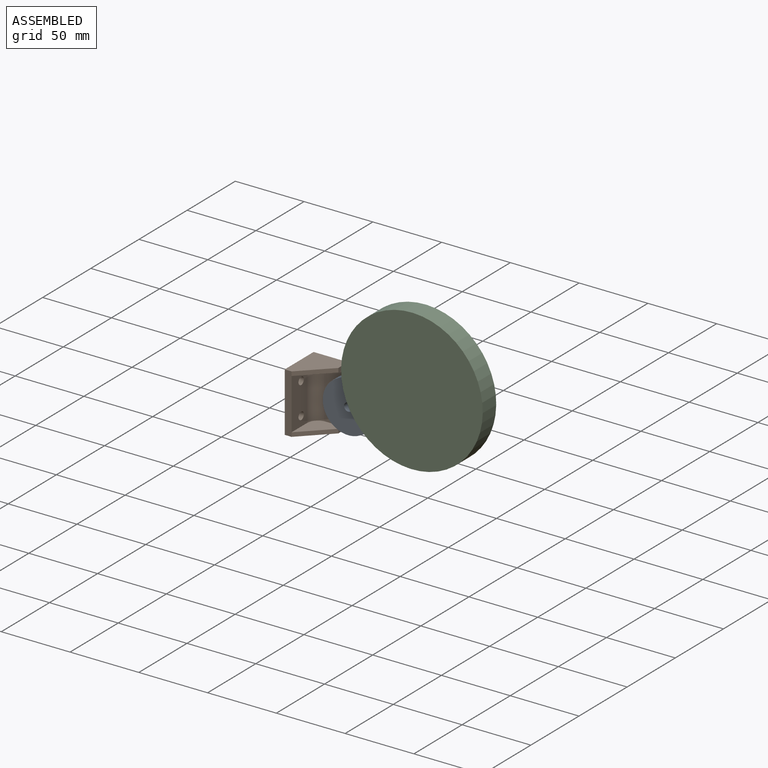
[diagram: assembled view]
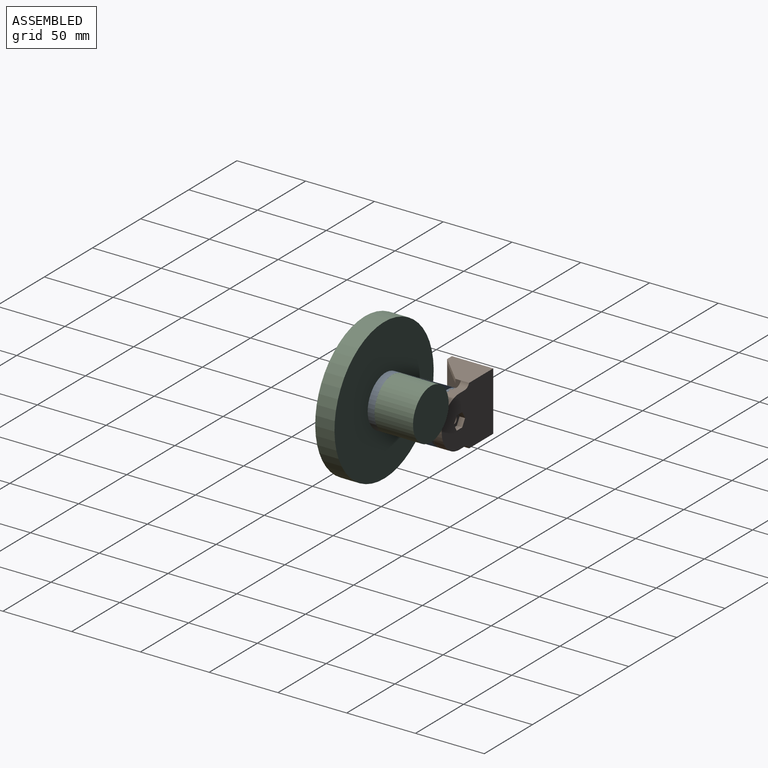
[diagram: assembled view, second angle]
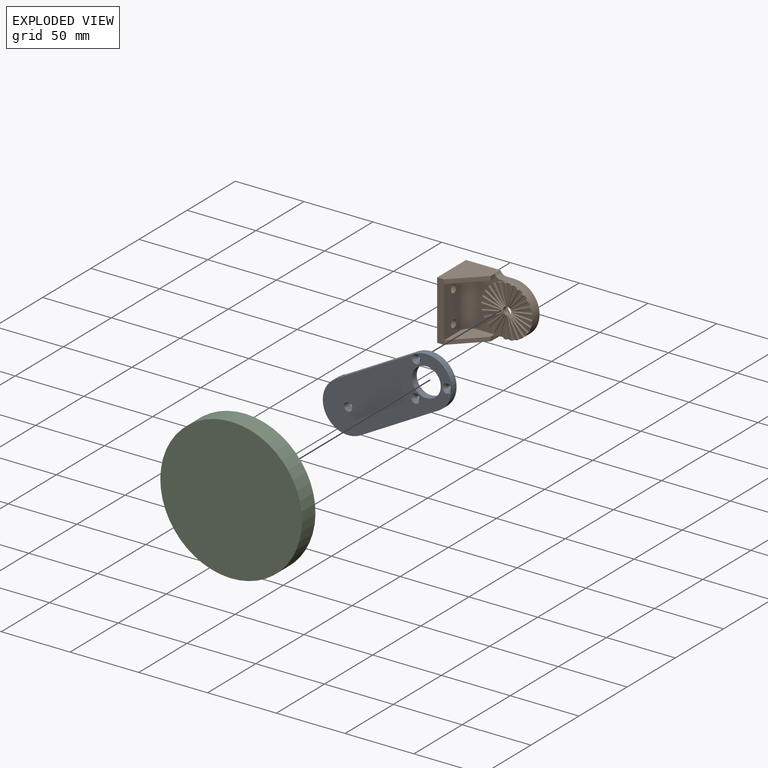
[diagram: exploded view]
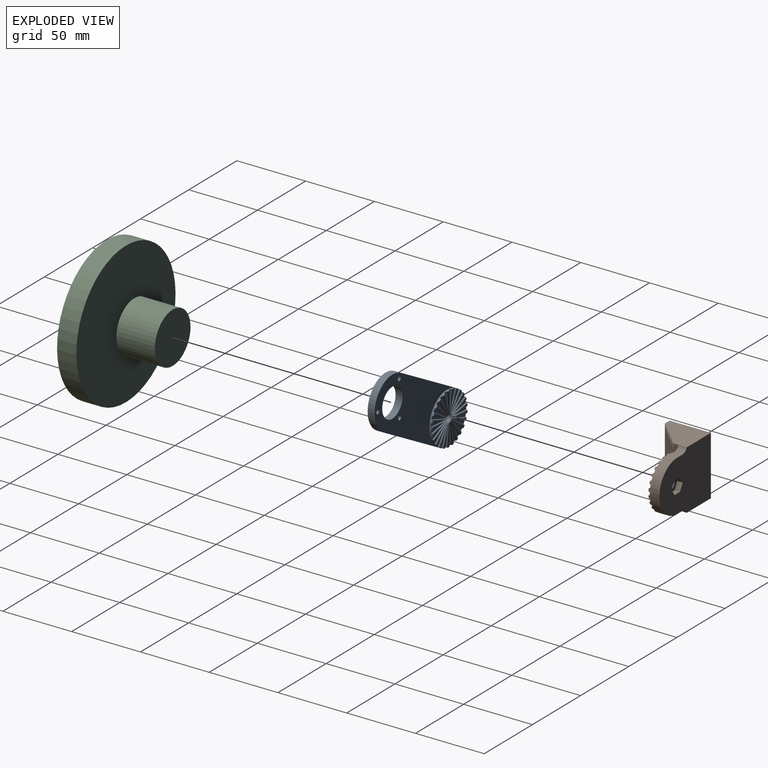
[diagram: exploded view, second angle]
ASSEMBLY  parts=3 mates=2
PART A: 164 faces, bbox 102x7x37 mm
  f0: cylinder r=3mm len=6.89mm, axis (0,1,0), area 120.4mm2, adj f35,f36,f37,f38,f39,f40,f41,f42
  f1: plane 10.21x3.88mm, normal (0,-1,0), area 7mm2, adj f32,f133,f134
  f2: plane 10.55x1.32mm, normal (0,-1,0), area 7mm2, adj f32,f135,f136
  f3: plane 8.13x7.69mm, normal (0,-1,0), area 7mm2, adj f32,f129,f130
  f4: plane 9.24x6.2mm, normal (0,-1,0), area 7mm2, adj f32,f131,f132
  f5: plane 8.53x7.22mm, normal (0,-1,0), area 7mm2, adj f32,f141,f142
  f6: plane 8.9x6.72mm, normal (0,-1,0), area 7mm2, adj f32,f143,f144
  f7: plane 10.46x2.62mm, normal (0,-1,0), area 7mm2, adj f32,f137,f138
  f8: plane 9.81x5.08mm, normal (0,-1,0), area 7mm2, adj f32,f139,f140
  f9: plane 8.53x7.22mm, normal (0,-1,0), area 7mm2, adj f32,f155,f156
  f10: plane 8.9x6.72mm, normal (0,-1,0), area 7mm2, adj f32,f153,f154
  f11: plane 10.46x2.62mm, normal (0,-1,0), area 7mm2, adj f32,f159,f160
  f12: plane 9.81x5.08mm, normal (0,-1,0), area 7mm2, adj f32,f157,f158
  f13: plane 10.53x1.98mm, normal (0,-1,0), area 7mm2, adj f32,f147,f148
  f14: plane 10.03x4.49mm, normal (0,-1,0), area 7mm2, adj f32,f145,f146
  f15: plane 10.03x4.49mm, normal (0,-1,0), area 7mm2, adj f32,f151,f152
  f16: plane 10.53x1.98mm, normal (0,-1,0), area 7mm2, adj f32,f149,f150
  f17: plane 8.13x7.69mm, normal (0,-1,0), area 7mm2, adj f32,f117,f118
  f18: plane 9.54x5.65mm, normal (0,-1,0), area 7mm2, adj f32,f119,f120
  f19: plane 10.21x3.88mm, normal (0,-1,0), area 7mm2, adj f32,f113,f114
  f20: plane 9.24x6.2mm, normal (0,-1,0), area 7mm2, adj f32,f115,f116
  f21: plane 10.54x1.32mm, normal (0,-1,0), area 7mm2, adj f32,f123,f124
  f22: plane 10.36x3.26mm, normal (0,-1,0), area 7mm2, adj f32,f121,f122
  f23: plane 9.54x5.65mm, normal (0,-1,0), area 7mm2, adj f32,f127,f128
  f24: plane 10.36x3.26mm, normal (0,-1,0), area 7mm2, adj f32,f125,f126
  f25: plane 10.55x1.32mm, normal (0,-1,0), area 7mm2, adj f32,f111,f112
  f26: plane 65x5mm, normal (0,0,1), area 325mm2, adj f27,f32,f34,f35
  f27: cylinder r=18.5mm len=37mm, axis (0,1,0), area 290.6mm2, adj f26,f28,f34,f35
  f28: plane 65x5mm, normal (0,0,-1), area 325mm2, adj f27,f32,f34,f35
  f29: cylinder r=1.55mm len=3.2mm, axis (0,1,0), area 31.2mm2, adj f34,f162
  f30: cylinder r=10.5mm len=21mm, axis (0,1,0), area 329.9mm2, adj f34,f35
  f31: cylinder r=1.55mm len=3.2mm, axis (0,1,0), area 31.2mm2, adj f34,f161
  f32: cylinder r=18.5mm len=37mm, axis (0,1,0), area 462.3mm2, adj f1,f2,f3,f4,f5,f6,f7,f8
  f33: cylinder r=1.55mm len=3.2mm, axis (0,1,0), area 31.2mm2, adj f34,f163
  f34: plane 83.5x37mm, normal (0,-1,0), area 2036mm2, adj f26,f27,f28,f29,f30,f31,f32,f33
  f35: plane 102x37mm, normal (0,1,0), area 2999.8mm2, adj f0,f26,f27,f28,f30,f32,f161,f162
  f36: plane 15.5x0.5mm, normal (1,0,0), area 7.7mm2, adj f0,f32,f38,f111
  f37: plane 15.38x1.94mm, normal (-0.99,0,0.13), area 7.8mm2, adj f0,f32,f38,f159
  f38: plane 15.52x2.32mm, normal (0,-1,0), area 20.9mm2, adj f0,f32,f36,f37
  f39: plane 15.47x0.97mm, normal (0.06,0,-1), area 7.7mm2, adj f0,f32,f41,f123
  f40: plane 15.23x2.9mm, normal (-0.19,0,0.98), area 7.7mm2, adj f0,f32,f41,f126
  f41: plane 15.52x3.28mm, normal (0,-1,0), area 20.9mm2, adj f0,f32,f39,f40
  f42: plane 14.74x4.79mm, normal (0.31,0,-0.95), area 7.7mm2, adj f0,f32,f44,f125
  f43: plane 14.03x6.6mm, normal (-0.43,0,0.9), area 7.7mm2, adj f0,f32,f44,f128
  f44: plane 14.88x6.95mm, normal (0,-1,0), area 20.9mm2, adj f0,f32,f42,f43
  f45: plane 14.03x6.6mm, normal (-0.43,0,-0.9), area 7.7mm2, adj f0,f32,f47,f119
  f46: plane 14.74x4.79mm, normal (0.31,0,0.95), area 7.7mm2, adj f0,f32,f47,f122
  f47: plane 14.88x6.95mm, normal (0,-1,0), area 20.9mm2, adj f0,f32,f45,f46
  f48: plane 15.23x2.9mm, normal (-0.19,0,-0.98), area 7.7mm2, adj f0,f32,f50,f121
  f49: plane 15.47x0.97mm, normal (0.06,0,1), area 7.7mm2, adj f0,f32,f50,f124
  f50: plane 15.52x3.28mm, normal (0,-1,0), area 20.9mm2, adj f0,f32,f48,f49
  f51: plane 14.41x5.71mm, normal (-0.93,0,-0.37), area 7.8mm2, adj f0,f32,f53,f113
  f52: plane 13.58x7.47mm, normal (0.88,0,0.48), area 7.8mm2, adj f0,f32,f53,f116
  f53: plane 14.57x7.81mm, normal (0,-1,0), area 20.9mm2, adj f0,f32,f51,f52
  f54: plane 15.38x1.94mm, normal (-0.99,0,-0.13), area 7.8mm2, adj f0,f32,f56,f112
  f55: plane 15.01x3.85mm, normal (0.97,0,0.25), area 7.7mm2, adj f0,f32,f56,f114
  f56: plane 15.45x4.22mm, normal (0,-1,0), area 20.9mm2, adj f0,f32,f54,f55
  f57: plane 11.94x9.88mm, normal (-0.64,0,-0.77), area 7.7mm2, adj f0,f32,f59,f117
  f58: plane 13.09x8.31mm, normal (0.54,0,0.84), area 7.8mm2, adj f0,f32,f59,f120
  f59: plane 13.31x10.19mm, normal (0,-1,0), area 20.9mm2, adj f0,f32,f57,f58
  f60: plane 12.54x9.11mm, normal (-0.81,0,-0.59), area 7.7mm2, adj f0,f32,f62,f115
  f61: plane 11.3x10.61mm, normal (0.73,0,0.68), area 7.8mm2, adj f0,f32,f62,f118
  f62: plane 12.78x10.9mm, normal (0,-1,0), area 20.9mm2, adj f0,f32,f60,f61
  f63: plane 15.47x0.97mm, normal (0.06,0,1), area 7.7mm2, adj f0,f32,f65,f147
  f64: plane 15.47x0.97mm, normal (0.06,0,-1), area 7.7mm2, adj f0,f32,f65,f150
  f65: plane 15.51x2.32mm, normal (0,-1,0), area 20.9mm2, adj f0,f32,f63,f64
  f66: plane 15.23x2.9mm, normal (-0.19,0,0.98), area 7.7mm2, adj f0,f32,f68,f149
  f67: plane 14.74x4.79mm, normal (0.31,0,-0.95), area 7.7mm2, adj f0,f32,f68,f152
  f68: plane 15.32x5.15mm, normal (0,-1,0), area 20.9mm2, adj f0,f32,f66,f67
  f69: plane 13.09x8.31mm, normal (0.54,0,0.84), area 7.8mm2, adj f0,f32,f71,f143
  f70: plane 14.03x6.6mm, normal (-0.43,0,-0.9), area 7.7mm2, adj f0,f32,f71,f146
  f71: plane 14.21x8.64mm, normal (0,-1,0), area 20.9mm2, adj f0,f32,f69,f70
  f72: plane 14.74x4.79mm, normal (0.31,0,0.95), area 7.7mm2, adj f0,f32,f74,f145
  f73: plane 15.23x2.9mm, normal (-0.19,0,-0.98), area 7.7mm2, adj f0,f32,f74,f148
  f74: plane 15.32x5.15mm, normal (0,-1,0), area 20.9mm2, adj f0,f32,f72,f73
  f75: plane 12.54x9.11mm, normal (-0.81,0,0.59), area 7.7mm2, adj f0,f32,f77,f155
  f76: plane 13.58x7.47mm, normal (0.88,0,-0.48), area 7.8mm2, adj f0,f32,f77,f158
  f77: plane 13.78x9.43mm, normal (0,-1,0), area 20.9mm2, adj f0,f32,f75,f76
  f78: plane 14.41x5.71mm, normal (-0.93,0,0.37), area 7.8mm2, adj f0,f32,f80,f157
  f79: plane 15.01x3.85mm, normal (0.97,0,-0.25), area 7.7mm2, adj f0,f32,f80,f160
  f80: plane 15.13x6.06mm, normal (0,-1,0), area 20.9mm2, adj f0,f32,f78,f79
  f81: plane 14.03x6.6mm, normal (-0.43,0,0.9), area 7.7mm2, adj f0,f32,f83,f151
  f82: plane 13.09x8.31mm, normal (0.54,0,-0.84), area 7.8mm2, adj f0,f32,f83,f154
  f83: plane 14.21x8.64mm, normal (0,-1,0), area 20.9mm2, adj f0,f32,f81,f82
  f84: plane 11.94x9.88mm, normal (-0.64,0,0.77), area 7.7mm2, adj f0,f32,f86,f153
  f85: plane 11.3x10.61mm, normal (0.73,0,-0.68), area 7.8mm2, adj f0,f32,f86,f156
  f86: plane 12.2x11.57mm, normal (0,-1,0), area 20.9mm2, adj f0,f32,f84,f85
  f87: plane 15.01x3.85mm, normal (0.97,0,0.25), area 7.7mm2, adj f0,f32,f89,f137
  f88: plane 14.41x5.71mm, normal (-0.93,0,-0.37), area 7.8mm2, adj f0,f32,f89,f140
  f89: plane 15.13x6.06mm, normal (0,-1,0), area 20.9mm2, adj f0,f32,f87,f88
  f90: plane 15.5x0.5mm, normal (1,0,0), area 7.7mm2, adj f0,f32,f92,f135
  f91: plane 15.38x1.94mm, normal (-0.99,0,-0.13), area 7.8mm2, adj f0,f32,f92,f138
  f92: plane 15.52x2.32mm, normal (0,-1,0), area 20.9mm2, adj f0,f32,f90,f91
  f93: plane 11.3x10.61mm, normal (0.73,0,0.68), area 7.8mm2, adj f0,f32,f95,f141
  f94: plane 11.94x9.88mm, normal (-0.64,0,-0.77), area 7.7mm2, adj f0,f32,f95,f144
  f95: plane 12.2x11.57mm, normal (0,-1,0), area 20.9mm2, adj f0,f32,f93,f94
  f96: plane 13.58x7.47mm, normal (0.88,0,0.48), area 7.8mm2, adj f0,f32,f98,f139
  f97: plane 12.54x9.11mm, normal (-0.81,0,-0.59), area 7.7mm2, adj f0,f32,f98,f142
  f98: plane 13.78x9.43mm, normal (0,-1,0), area 20.9mm2, adj f0,f32,f96,f97
  f99: plane 11.3x10.61mm, normal (0.73,0,-0.68), area 7.8mm2, adj f0,f32,f101,f129
  f100: plane 12.54x9.11mm, normal (-0.81,0,0.59), area 7.7mm2, adj f0,f32,f101,f132
  f101: plane 12.78x10.9mm, normal (0,-1,0), area 20.9mm2, adj f0,f32,f99,f100
  f102: plane 13.09x8.31mm, normal (0.54,0,-0.84), area 7.8mm2, adj f0,f32,f104,f127
  f103: plane 11.94x9.88mm, normal (-0.64,0,0.77), area 7.7mm2, adj f0,f32,f104,f130
  f104: plane 13.31x10.19mm, normal (0,-1,0), area 20.9mm2, adj f0,f32,f102,f103
  f105: plane 15.01x3.85mm, normal (0.97,0,-0.25), area 7.7mm2, adj f0,f32,f107,f133
  f106: plane 15.38x1.94mm, normal (-0.99,0,0.13), area 7.8mm2, adj f0,f32,f107,f136
  f107: plane 15.45x4.22mm, normal (0,-1,0), area 20.9mm2, adj f0,f32,f105,f106
  f108: plane 13.58x7.47mm, normal (0.88,0,-0.48), area 7.8mm2, adj f0,f32,f110,f131
  f109: plane 14.41x5.71mm, normal (-0.93,0,0.37), area 7.8mm2, adj f0,f32,f110,f134
  f110: plane 14.57x7.81mm, normal (0,-1,0), area 20.9mm2, adj f0,f32,f108,f109
  f111: cylinder r=0.5mm len=15.51mm, axis (0,0,1), area 11.4mm2, adj f0,f25,f32,f36,f112
  f112: cylinder r=0.5mm len=15.45mm, axis (0.13,0,-0.99), area 11.4mm2, adj f0,f25,f32,f54,f111
  f113: cylinder r=0.5mm len=14.6mm, axis (0.37,0,-0.93), area 11.4mm2, adj f0,f19,f32,f51,f114
  f114: cylinder r=0.5mm len=15.14mm, axis (-0.25,0,0.97), area 11.4mm2, adj f0,f19,f32,f55,f113
  f115: cylinder r=0.5mm len=12.84mm, axis (0.59,0,-0.81), area 11.4mm2, adj f0,f20,f32,f60,f116
  f116: cylinder r=0.5mm len=13.83mm, axis (-0.48,0,0.88), area 11.4mm2, adj f0,f20,f32,f52,f115
  f117: cylinder r=0.5mm len=12.27mm, axis (0.77,0,-0.64), area 11.4mm2, adj f0,f17,f32,f57,f118
  f118: cylinder r=0.5mm len=11.65mm, axis (-0.68,0,0.73), area 11.4mm2, adj f0,f17,f32,f61,f117
  f119: cylinder r=0.5mm len=14.24mm, axis (0.9,0,-0.43), area 11.4mm2, adj f0,f18,f32,f45,f120
  f120: cylinder r=0.5mm len=13.36mm, axis (-0.84,0,0.54), area 11.4mm2, adj f0,f18,f32,f58,f119
  f121: cylinder r=0.5mm len=15.33mm, axis (0.98,0,-0.19), area 11.4mm2, adj f0,f22,f32,f48,f122
  f122: cylinder r=0.5mm len=14.9mm, axis (-0.95,0,0.31), area 11.4mm2, adj f0,f22,f32,f46,f121
  f123: cylinder r=0.5mm len=15.51mm, axis (1,0,0.06), area 11.4mm2, adj f0,f21,f32,f39,f124
  f124: cylinder r=0.5mm len=15.51mm, axis (-1,0,0.06), area 11.4mm2, adj f0,f21,f32,f49,f123
  f125: cylinder r=0.5mm len=14.9mm, axis (0.95,0,0.31), area 11.4mm2, adj f0,f24,f32,f42,f126
  f126: cylinder r=0.5mm len=15.33mm, axis (-0.98,0,-0.19), area 11.4mm2, adj f0,f24,f32,f40,f125
  f127: cylinder r=0.5mm len=13.36mm, axis (0.84,0,0.54), area 11.4mm2, adj f0,f23,f32,f102,f128
  f128: cylinder r=0.5mm len=14.24mm, axis (-0.9,0,-0.43), area 11.4mm2, adj f0,f23,f32,f43,f127
  f129: cylinder r=0.5mm len=11.65mm, axis (0.68,0,0.73), area 11.4mm2, adj f0,f3,f32,f99,f130
  f130: cylinder r=0.5mm len=12.27mm, axis (-0.77,0,-0.64), area 11.4mm2, adj f0,f3,f32,f103,f129
  f131: cylinder r=0.5mm len=13.83mm, axis (0.48,0,0.88), area 11.4mm2, adj f0,f4,f32,f108,f132
  f132: cylinder r=0.5mm len=12.84mm, axis (-0.59,0,-0.81), area 11.4mm2, adj f0,f4,f32,f100,f131
  f133: cylinder r=0.5mm len=15.14mm, axis (0.25,0,0.97), area 11.4mm2, adj f0,f1,f32,f105,f134
  f134: cylinder r=0.5mm len=14.6mm, axis (-0.37,0,-0.93), area 11.4mm2, adj f0,f1,f32,f109,f133
  f135: cylinder r=0.5mm len=15.51mm, axis (0,0,1), area 11.4mm2, adj f0,f2,f32,f90,f136
  f136: cylinder r=0.5mm len=15.45mm, axis (-0.13,0,-0.99), area 11.4mm2, adj f0,f2,f32,f106,f135
  f137: cylinder r=0.5mm len=15.14mm, axis (-0.25,0,0.97), area 11.4mm2, adj f0,f7,f32,f87,f138
  f138: cylinder r=0.5mm len=15.45mm, axis (0.13,0,-0.99), area 11.4mm2, adj f0,f7,f32,f91,f137
  f139: cylinder r=0.5mm len=13.83mm, axis (-0.48,0,0.88), area 11.4mm2, adj f0,f8,f32,f96,f140
  f140: cylinder r=0.5mm len=14.6mm, axis (0.37,0,-0.93), area 11.4mm2, adj f0,f8,f32,f88,f139
  f141: cylinder r=0.5mm len=11.65mm, axis (-0.68,0,0.73), area 11.4mm2, adj f0,f5,f32,f93,f142
  f142: cylinder r=0.5mm len=12.84mm, axis (0.59,0,-0.81), area 11.4mm2, adj f0,f5,f32,f97,f141
  f143: cylinder r=0.5mm len=13.36mm, axis (-0.84,0,0.54), area 11.4mm2, adj f0,f6,f32,f69,f144
  f144: cylinder r=0.5mm len=12.27mm, axis (0.77,0,-0.64), area 11.4mm2, adj f0,f6,f32,f94,f143
  f145: cylinder r=0.5mm len=14.9mm, axis (-0.95,0,0.31), area 11.4mm2, adj f0,f14,f32,f72,f146
  f146: cylinder r=0.5mm len=14.24mm, axis (0.9,0,-0.43), area 11.4mm2, adj f0,f14,f32,f70,f145
  f147: cylinder r=0.5mm len=15.51mm, axis (-1,0,0.06), area 11.4mm2, adj f0,f13,f32,f63,f148
  f148: cylinder r=0.5mm len=15.33mm, axis (0.98,0,-0.19), area 11.4mm2, adj f0,f13,f32,f73,f147
  f149: cylinder r=0.5mm len=15.33mm, axis (-0.98,0,-0.19), area 11.4mm2, adj f0,f16,f32,f66,f150
  f150: cylinder r=0.5mm len=15.51mm, axis (1,0,0.06), area 11.4mm2, adj f0,f16,f32,f64,f149
  f151: cylinder r=0.5mm len=14.24mm, axis (-0.9,0,-0.43), area 11.4mm2, adj f0,f15,f32,f81,f152
  f152: cylinder r=0.5mm len=14.9mm, axis (0.95,0,0.31), area 11.4mm2, adj f0,f15,f32,f67,f151
  f153: cylinder r=0.5mm len=12.27mm, axis (-0.77,0,-0.64), area 11.4mm2, adj f0,f10,f32,f84,f154
  f154: cylinder r=0.5mm len=13.36mm, axis (0.84,0,0.54), area 11.4mm2, adj f0,f10,f32,f82,f153
  f155: cylinder r=0.5mm len=12.84mm, axis (-0.59,0,-0.81), area 11.4mm2, adj f0,f9,f32,f75,f156
  f156: cylinder r=0.5mm len=11.65mm, axis (0.68,0,0.73), area 11.4mm2, adj f0,f9,f32,f85,f155
  f157: cylinder r=0.5mm len=14.6mm, axis (-0.37,0,-0.93), area 11.4mm2, adj f0,f12,f32,f78,f158
  f158: cylinder r=0.5mm len=13.83mm, axis (0.48,0,0.88), area 11.4mm2, adj f0,f12,f32,f76,f157
  f159: cylinder r=0.5mm len=15.45mm, axis (-0.13,0,-0.99), area 11.4mm2, adj f0,f11,f32,f37,f160
  f160: cylinder r=0.5mm len=15.14mm, axis (0.25,0,0.97), area 11.4mm2, adj f0,f11,f32,f79,f159
  f161: cone r=3.35mm half-angle=45deg, axis (0,1,0), area 39.2mm2, adj f31,f35
  f162: cone r=3.35mm half-angle=45deg, axis (0,1,0), area 39.2mm2, adj f29,f35
  f163: cone r=3.35mm half-angle=45deg, axis (0,1,0), area 39.2mm2, adj f33,f35
PART B: 179 faces, bbox 53.5x30x43 mm
  f0: cylinder r=3mm len=6mm, axis (0,1,0), area 63.8mm2, adj f31,f32,f33,f34,f35,f36,f37,f38
  f1: plane 10.21x3.88mm, normal (0,-1,0), area 7mm2, adj f28,f128,f129
  f2: plane 10.55x1.32mm, normal (0,-1,0), area 7mm2, adj f28,f130,f131
  f3: plane 8.13x7.69mm, normal (0,-1,0), area 7mm2, adj f28,f124,f125
  f4: plane 9.24x6.2mm, normal (0,-1,0), area 7mm2, adj f28,f126,f127
  f5: plane 8.53x7.22mm, normal (0,-1,0), area 7mm2, adj f28,f136,f137
  f6: plane 8.9x6.72mm, normal (0,-1,0), area 7mm2, adj f28,f138,f139
  f7: plane 10.46x2.62mm, normal (0,-1,0), area 7mm2, adj f28,f132,f133
  f8: plane 9.81x5.08mm, normal (0,-1,0), area 7mm2, adj f28,f134,f135
  f9: plane 8.53x7.22mm, normal (0,-1,0), area 7mm2, adj f28,f150,f151
  f10: plane 8.9x6.72mm, normal (0,-1,0), area 7mm2, adj f28,f148,f149
  f11: plane 10.46x2.62mm, normal (0,-1,0), area 7mm2, adj f28,f154,f155
  f12: plane 9.81x5.08mm, normal (0,-1,0), area 7mm2, adj f28,f152,f153
  f13: plane 10.53x1.98mm, normal (0,-1,0), area 7mm2, adj f28,f142,f143
  f14: plane 10.03x4.49mm, normal (0,-1,0), area 7mm2, adj f28,f140,f141
  f15: plane 10.03x4.49mm, normal (0,-1,0), area 7mm2, adj f28,f146,f147
  f16: plane 10.53x1.98mm, normal (0,-1,0), area 7mm2, adj f28,f144,f145
  f17: plane 8.13x7.69mm, normal (0,-1,0), area 7mm2, adj f28,f112,f113
  f18: plane 9.54x5.65mm, normal (0,-1,0), area 7mm2, adj f28,f114,f115
  f19: plane 10.21x3.88mm, normal (0,-1,0), area 7mm2, adj f28,f108,f109
  f20: plane 9.24x6.2mm, normal (0,-1,0), area 7mm2, adj f28,f110,f111
  f21: plane 10.54x1.32mm, normal (0,-1,0), area 7mm2, adj f28,f118,f119
  f22: plane 10.36x3.26mm, normal (0,-1,0), area 7mm2, adj f28,f116,f117
  f23: plane 9.54x5.65mm, normal (0,-1,0), area 7mm2, adj f28,f122,f123
  f24: plane 10.36x3.26mm, normal (0,-1,0), area 7mm2, adj f28,f120,f121
  f25: plane 10.55x1.32mm, normal (0,-1,0), area 7mm2, adj f28,f106,f107
  f26: plane 6x5.42mm, normal (0,0,1), area 32.5mm2, adj f28,f29,f30,f171
  f27: plane 6x5.42mm, normal (0,0,-1), area 32.5mm2, adj f28,f29,f30,f170
  f28: cylinder r=18.5mm len=37mm, axis (0,1,0), area 520.4mm2, adj f1,f2,f3,f4,f5,f6,f7,f8
  f29: plane 43x22mm, normal (0,-1,0), area 284.1mm2, adj f26,f27,f28,f159,f160,f162,f163,f164
  f30: plane 53.5x43mm, normal (0,1,0), area 1903.7mm2, adj f26,f27,f28,f157,f161,f165,f170,f171
  f31: plane 15.5x0.5mm, normal (1,0,0), area 7.7mm2, adj f0,f28,f33,f106
  f32: plane 15.38x1.94mm, normal (-0.99,0,0.13), area 7.8mm2, adj f0,f28,f33,f154
  f33: plane 15.52x2.32mm, normal (0,-1,0), area 20.9mm2, adj f0,f28,f31,f32
  f34: plane 15.47x0.97mm, normal (0.06,0,-1), area 7.7mm2, adj f0,f28,f36,f118
  f35: plane 15.23x2.9mm, normal (-0.19,0,0.98), area 7.7mm2, adj f0,f28,f36,f121
  f36: plane 15.52x3.28mm, normal (0,-1,0), area 20.9mm2, adj f0,f28,f34,f35
  f37: plane 14.74x4.79mm, normal (0.31,0,-0.95), area 7.7mm2, adj f0,f28,f39,f120
  f38: plane 14.03x6.6mm, normal (-0.43,0,0.9), area 7.7mm2, adj f0,f28,f39,f123
  f39: plane 14.88x6.95mm, normal (0,-1,0), area 20.9mm2, adj f0,f28,f37,f38
  f40: plane 14.03x6.6mm, normal (-0.43,0,-0.9), area 7.7mm2, adj f0,f28,f42,f114
  f41: plane 14.74x4.79mm, normal (0.31,0,0.95), area 7.7mm2, adj f0,f28,f42,f117
  f42: plane 14.88x6.95mm, normal (0,-1,0), area 20.9mm2, adj f0,f28,f40,f41
  f43: plane 15.23x2.9mm, normal (-0.19,0,-0.98), area 7.7mm2, adj f0,f28,f45,f116
  f44: plane 15.47x0.97mm, normal (0.06,0,1), area 7.7mm2, adj f0,f28,f45,f119
  f45: plane 15.52x3.28mm, normal (0,-1,0), area 20.9mm2, adj f0,f28,f43,f44
  f46: plane 14.41x5.71mm, normal (-0.93,0,-0.37), area 7.8mm2, adj f0,f28,f48,f108
  f47: plane 13.58x7.47mm, normal (0.88,0,0.48), area 7.8mm2, adj f0,f28,f48,f111
  f48: plane 14.57x7.81mm, normal (0,-1,0), area 20.9mm2, adj f0,f28,f46,f47
  f49: plane 15.38x1.94mm, normal (-0.99,0,-0.13), area 7.8mm2, adj f0,f28,f51,f107
  f50: plane 15.01x3.85mm, normal (0.97,0,0.25), area 7.7mm2, adj f0,f28,f51,f109
  f51: plane 15.45x4.22mm, normal (0,-1,0), area 20.9mm2, adj f0,f28,f49,f50
  f52: plane 11.94x9.88mm, normal (-0.64,0,-0.77), area 7.7mm2, adj f0,f28,f54,f112
  f53: plane 13.09x8.31mm, normal (0.54,0,0.84), area 7.8mm2, adj f0,f28,f54,f115
  f54: plane 13.31x10.19mm, normal (0,-1,0), area 20.9mm2, adj f0,f28,f52,f53
  f55: plane 12.54x9.11mm, normal (-0.81,0,-0.59), area 7.7mm2, adj f0,f28,f57,f110
  f56: plane 11.3x10.61mm, normal (0.73,0,0.68), area 7.8mm2, adj f0,f28,f57,f113
  f57: plane 12.78x10.9mm, normal (0,-1,0), area 20.9mm2, adj f0,f28,f55,f56
  f58: plane 15.47x0.97mm, normal (0.06,0,1), area 7.7mm2, adj f0,f28,f60,f142
  f59: plane 15.47x0.97mm, normal (0.06,0,-1), area 7.7mm2, adj f0,f28,f60,f145
  f60: plane 15.51x2.32mm, normal (0,-1,0), area 20.9mm2, adj f0,f28,f58,f59
  f61: plane 15.23x2.9mm, normal (-0.19,0,0.98), area 7.7mm2, adj f0,f28,f63,f144
  f62: plane 14.74x4.79mm, normal (0.31,0,-0.95), area 7.7mm2, adj f0,f28,f63,f147
  f63: plane 15.32x5.15mm, normal (0,-1,0), area 20.9mm2, adj f0,f28,f61,f62
  f64: plane 13.09x8.31mm, normal (0.54,0,0.84), area 7.8mm2, adj f0,f28,f66,f138
  f65: plane 14.03x6.6mm, normal (-0.43,0,-0.9), area 7.7mm2, adj f0,f28,f66,f141
  f66: plane 14.21x8.64mm, normal (0,-1,0), area 20.9mm2, adj f0,f28,f64,f65
  f67: plane 14.74x4.79mm, normal (0.31,0,0.95), area 7.7mm2, adj f0,f28,f69,f140
  f68: plane 15.23x2.9mm, normal (-0.19,0,-0.98), area 7.7mm2, adj f0,f28,f69,f143
  f69: plane 15.32x5.15mm, normal (0,-1,0), area 20.9mm2, adj f0,f28,f67,f68
  f70: plane 12.54x9.11mm, normal (-0.81,0,0.59), area 7.7mm2, adj f0,f28,f72,f150
  f71: plane 13.58x7.47mm, normal (0.88,0,-0.48), area 7.8mm2, adj f0,f28,f72,f153
  f72: plane 13.78x9.43mm, normal (0,-1,0), area 20.9mm2, adj f0,f28,f70,f71
  f73: plane 14.41x5.71mm, normal (-0.93,0,0.37), area 7.8mm2, adj f0,f28,f75,f152
  f74: plane 15.01x3.85mm, normal (0.97,0,-0.25), area 7.7mm2, adj f0,f28,f75,f155
  f75: plane 15.13x6.06mm, normal (0,-1,0), area 20.9mm2, adj f0,f28,f73,f74
  f76: plane 14.03x6.6mm, normal (-0.43,0,0.9), area 7.7mm2, adj f0,f28,f78,f146
  f77: plane 13.09x8.31mm, normal (0.54,0,-0.84), area 7.8mm2, adj f0,f28,f78,f149
  f78: plane 14.21x8.64mm, normal (0,-1,0), area 20.9mm2, adj f0,f28,f76,f77
  f79: plane 11.94x9.88mm, normal (-0.64,0,0.77), area 7.7mm2, adj f0,f28,f81,f148
  f80: plane 11.3x10.61mm, normal (0.73,0,-0.68), area 7.8mm2, adj f0,f28,f81,f151
  f81: plane 12.2x11.57mm, normal (0,-1,0), area 20.9mm2, adj f0,f28,f79,f80
  f82: plane 15.01x3.85mm, normal (0.97,0,0.25), area 7.7mm2, adj f0,f28,f84,f132
  f83: plane 14.41x5.71mm, normal (-0.93,0,-0.37), area 7.8mm2, adj f0,f28,f84,f135
  f84: plane 15.13x6.06mm, normal (0,-1,0), area 20.9mm2, adj f0,f28,f82,f83
  f85: plane 15.5x0.5mm, normal (1,0,0), area 7.7mm2, adj f0,f28,f87,f130
  f86: plane 15.38x1.94mm, normal (-0.99,0,-0.13), area 7.8mm2, adj f0,f28,f87,f133
  f87: plane 15.52x2.32mm, normal (0,-1,0), area 20.9mm2, adj f0,f28,f85,f86
  f88: plane 11.3x10.61mm, normal (0.73,0,0.68), area 7.8mm2, adj f0,f28,f90,f136
  f89: plane 11.94x9.88mm, normal (-0.64,0,-0.77), area 7.7mm2, adj f0,f28,f90,f139
  f90: plane 12.2x11.57mm, normal (0,-1,0), area 20.9mm2, adj f0,f28,f88,f89
  f91: plane 13.58x7.47mm, normal (0.88,0,0.48), area 7.8mm2, adj f0,f28,f93,f134
  f92: plane 12.54x9.11mm, normal (-0.81,0,-0.59), area 7.7mm2, adj f0,f28,f93,f137
  f93: plane 13.78x9.43mm, normal (0,-1,0), area 20.9mm2, adj f0,f28,f91,f92
  f94: plane 11.3x10.61mm, normal (0.73,0,-0.68), area 7.8mm2, adj f0,f28,f96,f124
  f95: plane 12.54x9.11mm, normal (-0.81,0,0.59), area 7.7mm2, adj f0,f28,f96,f127
  f96: plane 12.78x10.9mm, normal (0,-1,0), area 20.9mm2, adj f0,f28,f94,f95
  f97: plane 13.09x8.31mm, normal (0.54,0,-0.84), area 7.8mm2, adj f0,f28,f99,f122
  f98: plane 11.94x9.88mm, normal (-0.64,0,0.77), area 7.7mm2, adj f0,f28,f99,f125
  f99: plane 13.31x10.19mm, normal (0,-1,0), area 20.9mm2, adj f0,f28,f97,f98
  f100: plane 15.01x3.85mm, normal (0.97,0,-0.25), area 7.7mm2, adj f0,f28,f102,f128
  f101: plane 15.38x1.94mm, normal (-0.99,0,0.13), area 7.8mm2, adj f0,f28,f102,f131
  f102: plane 15.45x4.22mm, normal (0,-1,0), area 20.9mm2, adj f0,f28,f100,f101
  f103: plane 13.58x7.47mm, normal (0.88,0,-0.48), area 7.8mm2, adj f0,f28,f105,f126
  f104: plane 14.41x5.71mm, normal (-0.93,0,0.37), area 7.8mm2, adj f0,f28,f105,f129
  f105: plane 14.57x7.81mm, normal (0,-1,0), area 20.9mm2, adj f0,f28,f103,f104
  f106: cylinder r=0.5mm len=15.51mm, axis (0,0,1), area 11.4mm2, adj f0,f25,f28,f31,f107
  f107: cylinder r=0.5mm len=15.45mm, axis (0.13,0,-0.99), area 11.4mm2, adj f0,f25,f28,f49,f106
  f108: cylinder r=0.5mm len=14.6mm, axis (0.37,0,-0.93), area 11.4mm2, adj f0,f19,f28,f46,f109
  f109: cylinder r=0.5mm len=15.14mm, axis (-0.25,0,0.97), area 11.4mm2, adj f0,f19,f28,f50,f108
  f110: cylinder r=0.5mm len=12.84mm, axis (0.59,0,-0.81), area 11.4mm2, adj f0,f20,f28,f55,f111
  f111: cylinder r=0.5mm len=13.83mm, axis (-0.48,0,0.88), area 11.4mm2, adj f0,f20,f28,f47,f110
  f112: cylinder r=0.5mm len=12.27mm, axis (0.77,0,-0.64), area 11.4mm2, adj f0,f17,f28,f52,f113
  f113: cylinder r=0.5mm len=11.65mm, axis (-0.68,0,0.73), area 11.4mm2, adj f0,f17,f28,f56,f112
  f114: cylinder r=0.5mm len=14.24mm, axis (0.9,0,-0.43), area 11.4mm2, adj f0,f18,f28,f40,f115
  f115: cylinder r=0.5mm len=13.36mm, axis (-0.84,0,0.54), area 11.4mm2, adj f0,f18,f28,f53,f114
  f116: cylinder r=0.5mm len=15.33mm, axis (0.98,0,-0.19), area 11.4mm2, adj f0,f22,f28,f43,f117
  f117: cylinder r=0.5mm len=14.9mm, axis (-0.95,0,0.31), area 11.4mm2, adj f0,f22,f28,f41,f116
  f118: cylinder r=0.5mm len=15.51mm, axis (1,0,0.06), area 11.4mm2, adj f0,f21,f28,f34,f119
  f119: cylinder r=0.5mm len=15.51mm, axis (-1,0,0.06), area 11.4mm2, adj f0,f21,f28,f44,f118
  f120: cylinder r=0.5mm len=14.9mm, axis (0.95,0,0.31), area 11.4mm2, adj f0,f24,f28,f37,f121
  f121: cylinder r=0.5mm len=15.33mm, axis (-0.98,0,-0.19), area 11.4mm2, adj f0,f24,f28,f35,f120
  f122: cylinder r=0.5mm len=13.36mm, axis (0.84,0,0.54), area 11.4mm2, adj f0,f23,f28,f97,f123
  f123: cylinder r=0.5mm len=14.24mm, axis (-0.9,0,-0.43), area 11.4mm2, adj f0,f23,f28,f38,f122
  f124: cylinder r=0.5mm len=11.65mm, axis (0.68,0,0.73), area 11.4mm2, adj f0,f3,f28,f94,f125
  f125: cylinder r=0.5mm len=12.27mm, axis (-0.77,0,-0.64), area 11.4mm2, adj f0,f3,f28,f98,f124
  f126: cylinder r=0.5mm len=13.83mm, axis (0.48,0,0.88), area 11.4mm2, adj f0,f4,f28,f103,f127
  f127: cylinder r=0.5mm len=12.84mm, axis (-0.59,0,-0.81), area 11.4mm2, adj f0,f4,f28,f95,f126
  f128: cylinder r=0.5mm len=15.14mm, axis (0.25,0,0.97), area 11.4mm2, adj f0,f1,f28,f100,f129
  f129: cylinder r=0.5mm len=14.6mm, axis (-0.37,0,-0.93), area 11.4mm2, adj f0,f1,f28,f104,f128
  f130: cylinder r=0.5mm len=15.51mm, axis (0,0,1), area 11.4mm2, adj f0,f2,f28,f85,f131
  f131: cylinder r=0.5mm len=15.45mm, axis (-0.13,0,-0.99), area 11.4mm2, adj f0,f2,f28,f101,f130
  f132: cylinder r=0.5mm len=15.14mm, axis (-0.25,0,0.97), area 11.4mm2, adj f0,f7,f28,f82,f133
  f133: cylinder r=0.5mm len=15.45mm, axis (0.13,0,-0.99), area 11.4mm2, adj f0,f7,f28,f86,f132
  f134: cylinder r=0.5mm len=13.83mm, axis (-0.48,0,0.88), area 11.4mm2, adj f0,f8,f28,f91,f135
  f135: cylinder r=0.5mm len=14.6mm, axis (0.37,0,-0.93), area 11.4mm2, adj f0,f8,f28,f83,f134
  f136: cylinder r=0.5mm len=11.65mm, axis (-0.68,0,0.73), area 11.4mm2, adj f0,f5,f28,f88,f137
  f137: cylinder r=0.5mm len=12.84mm, axis (0.59,0,-0.81), area 11.4mm2, adj f0,f5,f28,f92,f136
  f138: cylinder r=0.5mm len=13.36mm, axis (-0.84,0,0.54), area 11.4mm2, adj f0,f6,f28,f64,f139
  f139: cylinder r=0.5mm len=12.27mm, axis (0.77,0,-0.64), area 11.4mm2, adj f0,f6,f28,f89,f138
  f140: cylinder r=0.5mm len=14.9mm, axis (-0.95,0,0.31), area 11.4mm2, adj f0,f14,f28,f67,f141
  f141: cylinder r=0.5mm len=14.24mm, axis (0.9,0,-0.43), area 11.4mm2, adj f0,f14,f28,f65,f140
  f142: cylinder r=0.5mm len=15.51mm, axis (-1,0,0.06), area 11.4mm2, adj f0,f13,f28,f58,f143
  f143: cylinder r=0.5mm len=15.33mm, axis (0.98,0,-0.19), area 11.4mm2, adj f0,f13,f28,f68,f142
  f144: cylinder r=0.5mm len=15.33mm, axis (-0.98,0,-0.19), area 11.4mm2, adj f0,f16,f28,f61,f145
  f145: cylinder r=0.5mm len=15.51mm, axis (1,0,0.06), area 11.4mm2, adj f0,f16,f28,f59,f144
  f146: cylinder r=0.5mm len=14.24mm, axis (-0.9,0,-0.43), area 11.4mm2, adj f0,f15,f28,f76,f147
  f147: cylinder r=0.5mm len=14.9mm, axis (0.95,0,0.31), area 11.4mm2, adj f0,f15,f28,f62,f146
  f148: cylinder r=0.5mm len=12.27mm, axis (-0.77,0,-0.64), area 11.4mm2, adj f0,f10,f28,f79,f149
  f149: cylinder r=0.5mm len=13.36mm, axis (0.84,0,0.54), area 11.4mm2, adj f0,f10,f28,f77,f148
  f150: cylinder r=0.5mm len=12.84mm, axis (-0.59,0,-0.81), area 11.4mm2, adj f0,f9,f28,f70,f151
  f151: cylinder r=0.5mm len=11.65mm, axis (0.68,0,0.73), area 11.4mm2, adj f0,f9,f28,f80,f150
  f152: cylinder r=0.5mm len=14.6mm, axis (-0.37,0,-0.93), area 11.4mm2, adj f0,f12,f28,f73,f153
  f153: cylinder r=0.5mm len=13.83mm, axis (0.48,0,0.88), area 11.4mm2, adj f0,f12,f28,f71,f152
  f154: cylinder r=0.5mm len=15.45mm, axis (-0.13,0,-0.99), area 11.4mm2, adj f0,f11,f28,f32,f155
  f155: cylinder r=0.5mm len=15.14mm, axis (0.25,0,0.97), area 11.4mm2, adj f0,f11,f28,f74,f154
  f156: plane 43x5mm, normal (0,-1,0), area 215mm2, adj f157,f158,f161,f165,f166,f167
  f157: plane 43x30mm, normal (-1,0,0), area 1242.5mm2, adj f30,f156,f161,f165,f168,f169
  f158: plane 37x16mm, normal (1,0,0), area 544.5mm2, adj f156,f159,f160,f163,f168,f169
  f159: cylinder r=8mm len=37mm, axis (0,0,-1), area 465mm2, adj f29,f158,f160,f163
  f160: plane 24x20mm, normal (0,0,-1), area 266.3mm2, adj f29,f158,f159,f162,f166
  f161: plane 30x25mm, normal (0,0,1), area 550mm2, adj f30,f156,f157,f162,f166,f171
  f162: plane 4x3mm, normal (1,0,0), area 12mm2, adj f29,f160,f161,f166
  f163: plane 24x20mm, normal (0,0,1), area 266.3mm2, adj f29,f158,f159,f164,f167
  f164: plane 4x3mm, normal (1,0,0), area 12mm2, adj f29,f163,f165,f167
  f165: plane 30x25mm, normal (0,0,-1), area 550mm2, adj f30,f156,f157,f164,f167,f170
  f166: plane 20x20mm, normal (0.71,-0.71,0), area 84.9mm2, adj f156,f160,f161,f162
  f167: plane 20x20mm, normal (0.71,-0.71,0), area 84.9mm2, adj f156,f163,f164,f165
  f168: cylinder r=2.75mm len=5.5mm, axis (1,0,0), area 86.4mm2, adj f157,f158
  f169: cylinder r=2.75mm len=5.5mm, axis (1,0,0), area 86.4mm2, adj f157,f158
  f170: cylinder r=5mm len=6mm, axis (0,-1,0), area 34.8mm2, adj f27,f29,f30,f165
  f171: cylinder r=5mm len=6mm, axis (0,1,0), area 34.8mm2, adj f26,f29,f30,f161
  f172: plane 5x4mm, normal (-0.87,0,0.5), area 23.1mm2, adj f30,f173,f177,f178
  f173: plane 5.77x4mm, normal (0,0,1), area 23.1mm2, adj f30,f172,f174,f178
  f174: plane 5x4mm, normal (0.87,0,0.5), area 23.1mm2, adj f30,f173,f175,f178
  f175: plane 5x4mm, normal (0.87,0,-0.5), area 23.1mm2, adj f30,f174,f176,f178
  f176: plane 5.77x4mm, normal (0,0,-1), area 23.1mm2, adj f30,f175,f177,f178
  f177: plane 5x4mm, normal (-0.87,0,-0.5), area 23.1mm2, adj f30,f172,f176,f178
  f178: plane 11.55x10mm, normal (0,1,0), area 58.3mm2, adj f0,f172,f173,f174,f175,f176,f177
PART C: 7 faces, bbox 103x48x103 mm
  f0: cylinder r=51.5mm len=103mm, axis (0,1,0), area 4530.2mm2, adj f1,f2
  f1: plane 103x103mm, normal (0,-1,0), area 8332.3mm2, adj f0
  f2: plane 103x103mm, normal (0,1,0), area 8282mm2, adj f0,f3
  f3: cylinder r=4mm len=8mm, axis (0,-1,0), area 150.8mm2, adj f2,f6
  f4: cylinder r=18.5mm len=37mm, axis (0,-1,0), area 3254.7mm2, adj f5,f6
  f5: plane 37x37mm, normal (0,1,0), area 1075.2mm2, adj f4
  f6: plane 37x37mm, normal (0,-1,0), area 1024.9mm2, adj f3,f4
PLACE A rot(axis=(0.25,0,-0.97),180deg) t=(74.37,-14.82,4.17)mm
PLACE B t=(-32.45,-0.78,-27.39)mm fixed
PLACE C rot(axis=(0,1,0),61deg) t=(74.37,-15.82,4.17)mm
MATE revolute A.f0 <-> B.f0  axis (0,-1,0) through (17.55,-7.89,-27.39)mm
MATE fastened C.f4 <-> A.f30  axis (0,-1,0) through (74.37,-9.82,4.17)mm
